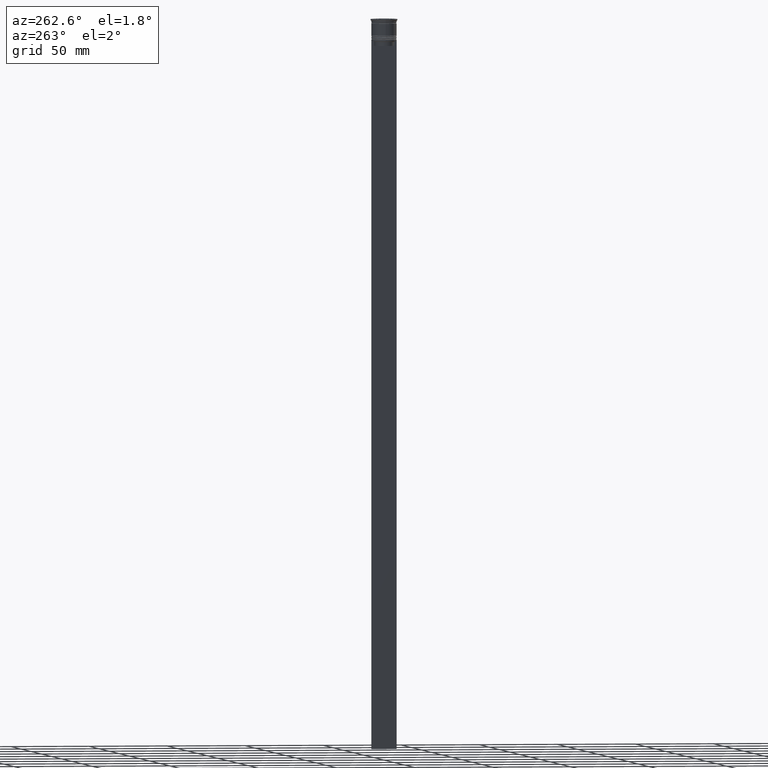
[diagram: clean part render]
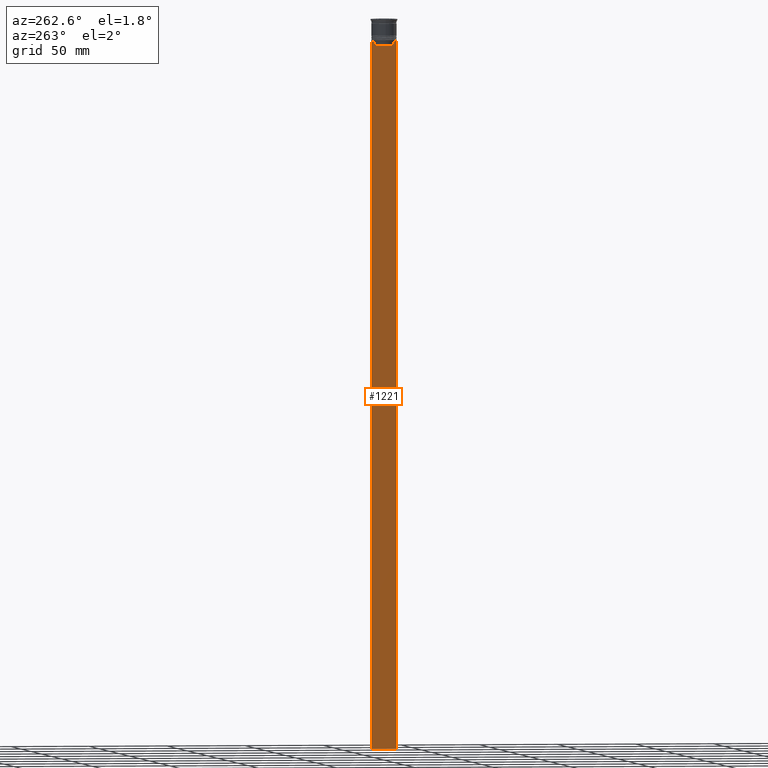
[diagram: same view with one face highlighted and labeled with its STEP entity id]
A machine part, auxiliary view. The second image highlights one B-rep face of the part: STEP entity #1221.
In plain terms, the highlighted planar face has unit normal (-1, 0, 0).
Its self-contained STEP definition (entity closure, byte-faithful):
#4 = CARTESIAN_POINT ( 'NONE',  ( -0.4999999999999998890, -7.884161337770806632, -14.00000000000000178 ) ) ;
#6 = VECTOR ( 'NONE', #822, 1000.000000000000000 ) ;
#27 = ORIENTED_EDGE ( 'NONE', *, *, #1218, .F. ) ;
#29 = CARTESIAN_POINT ( 'NONE',  ( -0.4999999999999998890, -8.000000000000003553, -464.0000000000000000 ) ) ;
#57 = CARTESIAN_POINT ( 'NONE',  ( -0.4999999999999998890, -8.000000000000003553, -14.00000000000000178 ) ) ;
#67 = CARTESIAN_POINT ( 'NONE',  ( -0.4999999999999998890, 6.714736947114692711, -14.16668390704818847 ) ) ;
#98 = VERTEX_POINT ( 'NONE', #909 ) ;
#105 = B_SPLINE_CURVE_WITH_KNOTS ( 'NONE', 3,
 ( #1179, #156, #961, #1920 ),
 .UNSPECIFIED., .F., .F.,
 ( 4, 4 ),
 ( 0.02996184199614749730, 0.03067452609193703841 ),
 .UNSPECIFIED. ) ;
#115 = VERTEX_POINT ( 'NONE', #1883 ) ;
#131 = VECTOR ( 'NONE', #2107, 1000.000000000000000 ) ;
#132 = LINE ( 'NONE', #2054, #1581 ) ;
#156 = CARTESIAN_POINT ( 'NONE',  ( -0.4999999999999998890, -6.547597841511246131, -14.33335192438652328 ) ) ;
#175 = LINE ( 'NONE', #2134, #850 ) ;
#176 = CARTESIAN_POINT ( 'NONE',  ( -0.4999999999999998890, -6.881860213634098500, -14.00000000000000178 ) ) ;
#197 = ORIENTED_EDGE ( 'NONE', *, *, #1864, .F. ) ;
#249 = VECTOR ( 'NONE', #997, 1000.000000000000000 ) ;
#341 = EDGE_CURVE ( 'NONE', #1183, #115, #2333, .T. ) ;
#362 = VERTEX_POINT ( 'NONE', #29 ) ;
#373 = EDGE_CURVE ( 'NONE', #115, #362, #175, .T. ) ;
#381 = CARTESIAN_POINT ( 'NONE',  ( -0.4999999999999998890, -8.000000000000003553, 2.031219541881394530 ) ) ;
#412 = AXIS2_PLACEMENT_3D ( 'NONE', #381, #740, #1307 ) ;
#415 = DIRECTION ( 'NONE',  ( 0.000000000000000000, 0.000000000000000000, -1.000000000000000000 ) ) ;
#441 = CARTESIAN_POINT ( 'NONE',  ( -0.4999999999999998890, -6.380438856379708312, -14.50000000000000000 ) ) ;
#457 = ORIENTED_EDGE ( 'NONE', *, *, #1763, .F. ) ;
#513 = EDGE_CURVE ( 'NONE', #1599, #98, #623, .T. ) ;
#545 = FACE_OUTER_BOUND ( 'NONE', #1954, .T. ) ;
#547 = DIRECTION ( 'NONE',  ( 0.000000000000000000, -1.000000000000000000, 0.000000000000000000 ) ) ;
#565 = VECTOR ( 'NONE', #659, 1000.000000000000000 ) ;
#577 = PLANE ( 'NONE',  #412 ) ;
#623 = LINE ( 'NONE', #1228, #6 ) ;
#632 = VERTEX_POINT ( 'NONE', #717 ) ;
#654 = CARTESIAN_POINT ( 'NONE',  ( -0.4999999999999998890, 7.999999999999996447, -14.00000000000000178 ) ) ;
#659 = DIRECTION ( 'NONE',  ( 0.000000000000000000, 0.000000000000000000, -1.000000000000000000 ) ) ;
#692 = DIRECTION ( 'NONE',  ( 0.000000000000000000, -1.000000000000000000, 0.000000000000000000 ) ) ;
#717 = CARTESIAN_POINT ( 'NONE',  ( -0.4999999999999998890, 7.884161337770806632, -14.00000000000000178 ) ) ;
#740 = DIRECTION ( 'NONE',  ( -1.000000000000000000, 0.000000000000000000, 0.000000000000000000 ) ) ;
#760 = LINE ( 'NONE', #1547, #131 ) ;
#787 = LINE ( 'NONE', #924, #1417 ) ;
#822 = DIRECTION ( 'NONE',  ( 0.000000000000000000, 0.000000000000000000, -1.000000000000000000 ) ) ;
#827 = CARTESIAN_POINT ( 'NONE',  ( -0.4999999999999998890, 7.999999999999996447, -464.0000000000000000 ) ) ;
#850 = VECTOR ( 'NONE', #415, 1000.000000000000000 ) ;
#909 = CARTESIAN_POINT ( 'NONE',  ( -0.4999999999999998890, 6.380438856379708312, -17.00000000000000000 ) ) ;
#924 = CARTESIAN_POINT ( 'NONE',  ( -0.4999999999999998890, -8.000000000000003553, -14.00000000000000178 ) ) ;
#961 = CARTESIAN_POINT ( 'NONE',  ( -0.4999999999999998890, -6.714736947305992132, -14.16668390685738999 ) ) ;
#982 = ORIENTED_EDGE ( 'NONE', *, *, #341, .F. ) ;
#997 = DIRECTION ( 'NONE',  ( 0.000000000000000000, -1.000000000000000000, 0.000000000000000000 ) ) ;
#1025 = EDGE_CURVE ( 'NONE', #632, #2241, #132, .T. ) ;
#1044 = EDGE_CURVE ( 'NONE', #362, #1922, #1104, .T. ) ;
#1066 = ORIENTED_EDGE ( 'NONE', *, *, #1419, .T. ) ;
#1078 = CARTESIAN_POINT ( 'NONE',  ( -0.4999999999999998890, -8.000000000000003553, -464.0000000000000000 ) ) ;
#1080 = CARTESIAN_POINT ( 'NONE',  ( -0.4999999999999998890, 6.380438856379708312, -14.50000000000000000 ) ) ;
#1104 = LINE ( 'NONE', #1078, #1616 ) ;
#1122 = ORIENTED_EDGE ( 'NONE', *, *, #1025, .F. ) ;
#1156 = LINE ( 'NONE', #1955, #565 ) ;
#1166 = ORIENTED_EDGE ( 'NONE', *, *, #1895, .F. ) ;
#1179 = CARTESIAN_POINT ( 'NONE',  ( -0.4999999999999998890, -6.380438856379708312, -14.50000000000000000 ) ) ;
#1180 = CARTESIAN_POINT ( 'NONE',  ( -0.4999999999999998890, 6.547597841304911626, -14.33335192459222718 ) ) ;
#1183 = VERTEX_POINT ( 'NONE', #4 ) ;
#1190 = CARTESIAN_POINT ( 'NONE',  ( -0.4999999999999998890, 6.380438856379708312, -14.50000000000000000 ) ) ;
#1218 = EDGE_CURVE ( 'NONE', #1964, #2103, #105, .T. ) ;
#1221 = ADVANCED_FACE ( 'NONE', ( #545 ), #577, .T. ) ;
#1226 = ORIENTED_EDGE ( 'NONE', *, *, #1821, .F. ) ;
#1228 = CARTESIAN_POINT ( 'NONE',  ( -0.4999999999999998890, 6.380438856379708312, 0.000000000000000000 ) ) ;
#1257 = DIRECTION ( 'NONE',  ( 0.000000000000000000, 1.000000000000000000, 0.000000000000000000 ) ) ;
#1307 = DIRECTION ( 'NONE',  ( 0.000000000000000000, 0.000000000000000000, 1.000000000000000000 ) ) ;
#1348 = VERTEX_POINT ( 'NONE', #2132 ) ;
#1353 = B_SPLINE_CURVE_WITH_KNOTS ( 'NONE', 3,
 ( #1784, #67, #1180, #1190 ),
 .UNSPECIFIED., .F., .F.,
 ( 4, 4 ),
 ( 0.01172465562756038263, 0.01243276816391822651 ),
 .UNSPECIFIED. ) ;
#1361 = CARTESIAN_POINT ( 'NONE',  ( -0.4999999999999998890, 6.399999999999999467, -17.00000000000000000 ) ) ;
#1390 = ORIENTED_EDGE ( 'NONE', *, *, #1044, .F. ) ;
#1398 = DIRECTION ( 'NONE',  ( 0.000000000000000000, -1.000000000000000000, 0.000000000000000000 ) ) ;
#1414 = EDGE_CURVE ( 'NONE', #1348, #1964, #760, .T. ) ;
#1417 = VECTOR ( 'NONE', #547, 1000.000000000000000 ) ;
#1419 = EDGE_CURVE ( 'NONE', #1937, #1922, #1156, .T. ) ;
#1542 = DIRECTION ( 'NONE',  ( 0.000000000000000000, -1.000000000000000000, 0.000000000000000000 ) ) ;
#1547 = CARTESIAN_POINT ( 'NONE',  ( -0.4999999999999998890, -6.380438856379708312, 0.000000000000000000 ) ) ;
#1576 = CARTESIAN_POINT ( 'NONE',  ( -0.4999999999999998890, 6.881860213634098500, -14.00000000000000178 ) ) ;
#1581 = VECTOR ( 'NONE', #692, 1000.000000000000000 ) ;
#1599 = VERTEX_POINT ( 'NONE', #1080 ) ;
#1616 = VECTOR ( 'NONE', #1257, 1000.000000000000000 ) ;
#1638 = ORIENTED_EDGE ( 'NONE', *, *, #1414, .F. ) ;
#1763 = EDGE_CURVE ( 'NONE', #98, #1348, #1886, .T. ) ;
#1784 = CARTESIAN_POINT ( 'NONE',  ( -0.4999999999999998890, 6.881860213634098500, -14.00000000000000178 ) ) ;
#1821 = EDGE_CURVE ( 'NONE', #2103, #1183, #787, .T. ) ;
#1864 = EDGE_CURVE ( 'NONE', #1937, #632, #2384, .T. ) ;
#1883 = CARTESIAN_POINT ( 'NONE',  ( -0.4999999999999998890, -8.000000000000003553, -14.00000000000000178 ) ) ;
#1886 = LINE ( 'NONE', #1361, #2424 ) ;
#1895 = EDGE_CURVE ( 'NONE', #2241, #1599, #1353, .T. ) ;
#1906 = ORIENTED_EDGE ( 'NONE', *, *, #373, .F. ) ;
#1920 = CARTESIAN_POINT ( 'NONE',  ( -0.4999999999999998890, -6.881860213634098500, -14.00000000000000178 ) ) ;
#1922 = VERTEX_POINT ( 'NONE', #827 ) ;
#1937 = VERTEX_POINT ( 'NONE', #654 ) ;
#1940 = CARTESIAN_POINT ( 'NONE',  ( -0.4999999999999998890, -8.000000000000003553, -14.00000000000000178 ) ) ;
#1948 = VECTOR ( 'NONE', #1398, 1000.000000000000000 ) ;
#1954 = EDGE_LOOP ( 'NONE', ( #1166, #1122, #197, #1066, #1390, #1906, #982, #1226, #27, #1638, #457, #2449 ) ) ;
#1955 = CARTESIAN_POINT ( 'NONE',  ( -0.4999999999999998890, 7.999999999999996447, 2.031219541881394530 ) ) ;
#1964 = VERTEX_POINT ( 'NONE', #441 ) ;
#2054 = CARTESIAN_POINT ( 'NONE',  ( -0.4999999999999998890, -8.000000000000003553, -14.00000000000000178 ) ) ;
#2103 = VERTEX_POINT ( 'NONE', #176 ) ;
#2107 = DIRECTION ( 'NONE',  ( -0.000000000000000000, -0.000000000000000000, 1.000000000000000000 ) ) ;
#2132 = CARTESIAN_POINT ( 'NONE',  ( -0.4999999999999998890, -6.380438856379708312, -17.00000000000000000 ) ) ;
#2134 = CARTESIAN_POINT ( 'NONE',  ( -0.4999999999999998890, -8.000000000000003553, 2.031219541881394530 ) ) ;
#2241 = VERTEX_POINT ( 'NONE', #1576 ) ;
#2333 = LINE ( 'NONE', #1940, #249 ) ;
#2384 = LINE ( 'NONE', #57, #1948 ) ;
#2424 = VECTOR ( 'NONE', #1542, 1000.000000000000000 ) ;
#2449 = ORIENTED_EDGE ( 'NONE', *, *, #513, .F. ) ;